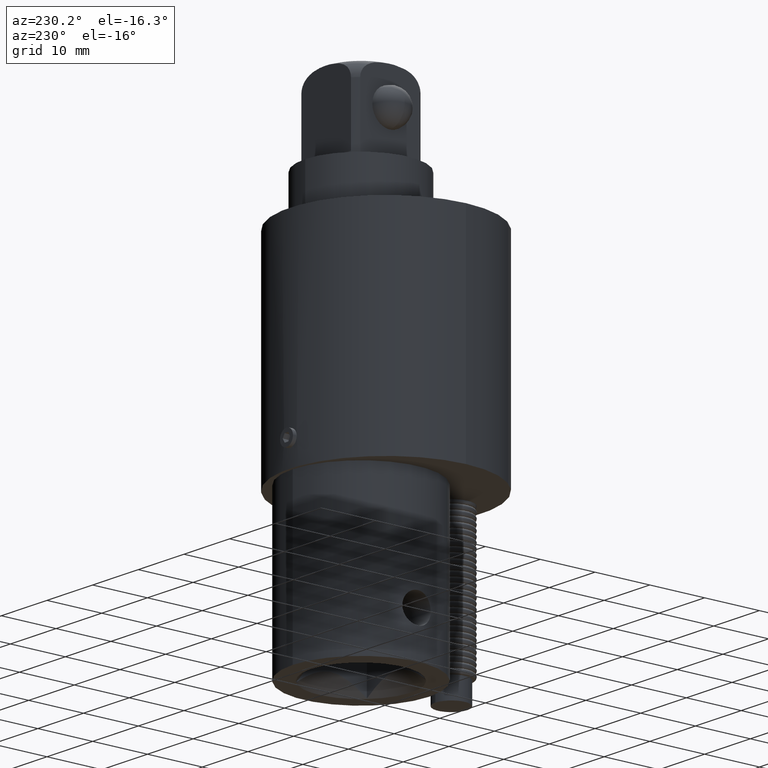
[diagram: clean part render]
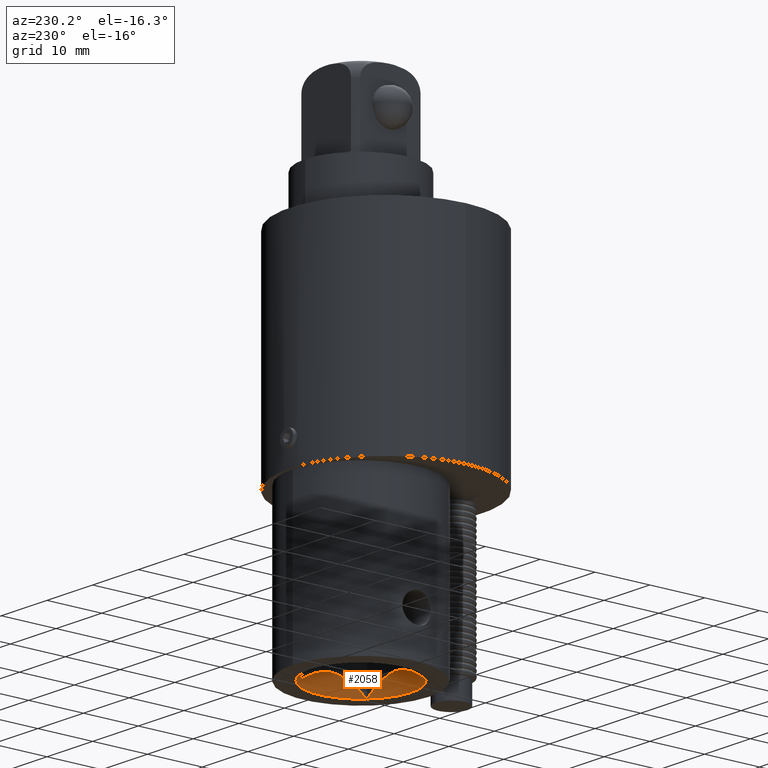
[diagram: same view with one face highlighted and labeled with its STEP entity id]
A machine part, auxiliary view. The second image highlights one B-rep face of the part: STEP entity #2058.
In plain terms, the highlighted conical surface has half-angle 45 deg.
Its self-contained STEP definition (entity closure, byte-faithful):
#1860=CARTESIAN_POINT('',(7.557735023022723,3.515497579026913,-1.810364224602996));
#1861=VERTEX_POINT('',#1860);
#1862=CARTESIAN_POINT('',(8.063735023022723,3.515497579026912,-1.810364224602996));
#1863=VERTEX_POINT('',#1862);
#1864=CARTESIAN_POINT('',(7.557735023022723,3.515497579026913,-1.810364224602996));
#1865=CARTESIAN_POINT('',(7.810735023022656,3.515497579026912,-1.631466208962720));
#1866=CARTESIAN_POINT('',(8.063735023022723,3.515497579026912,-1.810364224602996));
#1874=(BOUNDED_CURVE()B_SPLINE_CURVE(2,(#1864,#1865,#1866),.UNSPECIFIED.,.F.,.U.)B_SPLINE_CURVE_WITH_KNOTS((3,3),(0.006040911388394,1.403967973690165),.UNSPECIFIED.)CURVE()GEOMETRIC_REPRESENTATION_ITEM()RATIONAL_B_SPLINE_CURVE((1.003608354682637,1.419316546503178,1.003608354682534))REPRESENTATION_ITEM(''));
#1875=EDGE_CURVE('',#1861,#1863,#1874,.T.);
#1907=CARTESIAN_POINT('',(8.063735023022723,4.021497579026912,-1.810364224602996));
#1908=VERTEX_POINT('',#1907);
#1909=CARTESIAN_POINT('',(8.063735023022723,3.515497579026912,-1.810364224602996));
#1910=CARTESIAN_POINT('',(8.063735023022723,3.768497579026845,-1.631466208962720));
#1911=CARTESIAN_POINT('',(8.063735023022723,4.021497579026912,-1.810364224602996));
#1919=(BOUNDED_CURVE()B_SPLINE_CURVE(2,(#1909,#1910,#1911),.UNSPECIFIED.,.F.,.U.)B_SPLINE_CURVE_WITH_KNOTS((3,3),(0.006040911388395,1.403967973690166),.UNSPECIFIED.)CURVE()GEOMETRIC_REPRESENTATION_ITEM()RATIONAL_B_SPLINE_CURVE((1.003608354682637,1.419316546503188,1.003608354682534))REPRESENTATION_ITEM(''));
#1920=EDGE_CURVE('',#1863,#1908,#1919,.T.);
#1948=CARTESIAN_POINT('',(7.557735023022724,4.021497579026913,-1.810364224602996));
#1949=VERTEX_POINT('',#1948);
#1950=CARTESIAN_POINT('',(8.063735023022723,4.021497579026912,-1.810364224602996));
#1951=CARTESIAN_POINT('',(7.810735023022790,4.021497579026912,-1.631466208962721));
#1952=CARTESIAN_POINT('',(7.557735023022724,4.021497579026913,-1.810364224602996));
#1960=(BOUNDED_CURVE()B_SPLINE_CURVE(2,(#1950,#1951,#1952),.UNSPECIFIED.,.F.,.U.)B_SPLINE_CURVE_WITH_KNOTS((3,3),(0.006040911388395,1.403967973690166),.UNSPECIFIED.)CURVE()GEOMETRIC_REPRESENTATION_ITEM()RATIONAL_B_SPLINE_CURVE((1.003608354682637,1.419316546503189,1.003608354682534))REPRESENTATION_ITEM(''));
#1961=EDGE_CURVE('',#1908,#1949,#1960,.T.);
#1986=CARTESIAN_POINT('',(7.557735023022724,4.021497579026913,-1.810364224602996));
#1987=CARTESIAN_POINT('',(7.557735023022723,3.768497579026979,-1.631466208962720));
#1988=CARTESIAN_POINT('',(7.557735023022723,3.515497579026913,-1.810364224602996));
#1996=(BOUNDED_CURVE()B_SPLINE_CURVE(2,(#1986,#1987,#1988),.UNSPECIFIED.,.F.,.U.)B_SPLINE_CURVE_WITH_KNOTS((3,3),(0.006040911388394,1.403967973690165),.UNSPECIFIED.)CURVE()GEOMETRIC_REPRESENTATION_ITEM()RATIONAL_B_SPLINE_CURVE((1.003608354682637,1.419316546503178,1.003608354682534))REPRESENTATION_ITEM(''));
#1997=EDGE_CURVE('',#1949,#1861,#1996,.T.);
#2036=CARTESIAN_POINT('',(7.810735023022723,3.768497579026912,-1.757568193322603));
#2037=DIRECTION('',(1.872135E-016,-4.837723E-017,-1.0));
#2038=DIRECTION('',(0.0,-1.0,0.0));
#2039=AXIS2_PLACEMENT_3D('',#2036,#2037,#2038);
#2040=CONICAL_SURFACE('',#2039,0.305000000000000,45.000000000000014);
#2041=ORIENTED_EDGE('',*,*,#1961,.T.);
#2042=ORIENTED_EDGE('',*,*,#1997,.T.);
#2043=ORIENTED_EDGE('',*,*,#1875,.T.);
#2044=ORIENTED_EDGE('',*,*,#1920,.T.);
#2045=EDGE_LOOP('',(#2041,#2042,#2043,#2044));
#2046=FACE_OUTER_BOUND('',#2045,.T.);
#2047=CARTESIAN_POINT('',(7.810735023022723,4.128497579026912,-1.812568193322603));
#2048=VERTEX_POINT('',#2047);
#2049=CARTESIAN_POINT('',(7.810735023022723,3.768497579026912,-1.812568193322603));
#2050=DIRECTION('',(0.0,0.0,-1.0));
#2051=DIRECTION('',(0.0,-1.0,0.0));
#2052=AXIS2_PLACEMENT_3D('',#2049,#2050,#2051);
#2053=CIRCLE('',#2052,0.360000000000000);
#2054=EDGE_CURVE('',#2048,#2048,#2053,.T.);
#2055=ORIENTED_EDGE('',*,*,#2054,.T.);
#2056=EDGE_LOOP('',(#2055));
#2057=FACE_BOUND('',#2056,.T.);
#2058=ADVANCED_FACE('',(#2046,#2057),#2040,.F.);